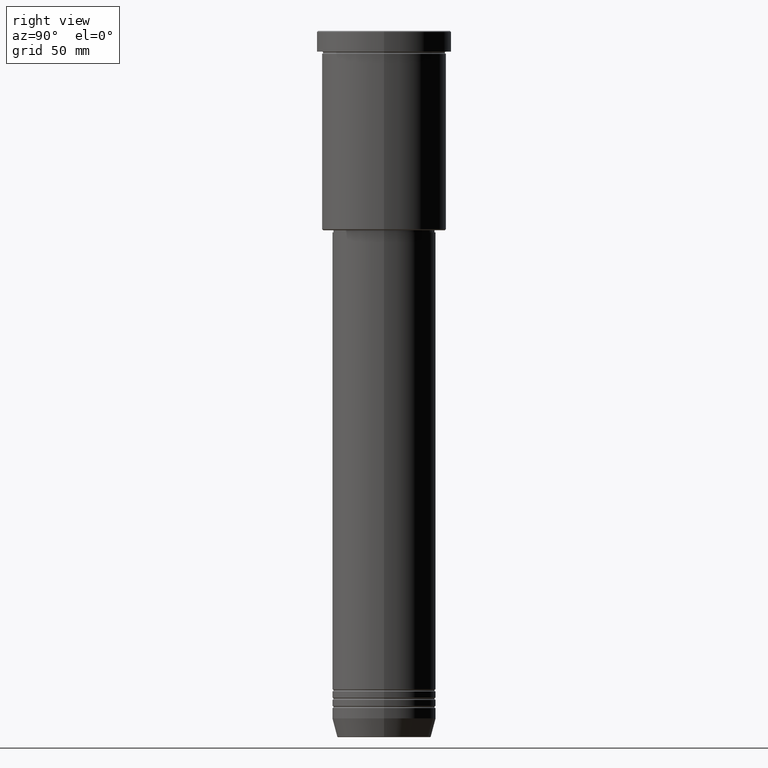
[diagram: clean part render]
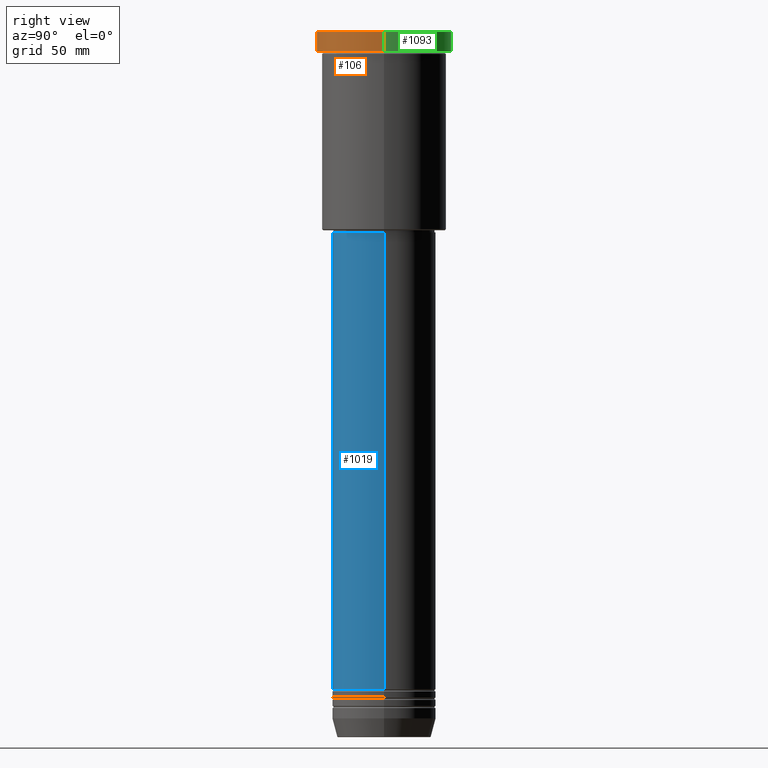
[diagram: same view with three faces highlighted in distinct colors, each labeled with its STEP entity id]
A machine part, right view with three faces highlighted in distinct colors.
Their STEP definitions:

[orange] entity #106 — the highlighted cylindrical surface (partial cylindrical patch) has radius 32.5 mm, axis along (-0, -0, 1).
#48 = FACE_OUTER_BOUND ( 'NONE', #844, .T. ) ;
#80 = CARTESIAN_POINT ( 'NONE',  ( 32.50000000000000000, 0.000000000000000000, 0.000000000000000000 ) ) ;
#81 = VECTOR ( 'NONE', #752, 1000.000000000000000 ) ;
#92 = CARTESIAN_POINT ( 'NONE',  ( 0.000000000000000000, 0.000000000000000000, -0.5000000000000559552 ) ) ;
#106 = ADVANCED_FACE ( 'NONE', ( #48 ), #657, .T. ) ;
#188 = ORIENTED_EDGE ( 'NONE', *, *, #875, .T. ) ;
#195 = VERTEX_POINT ( 'NONE', #553 ) ;
#223 = EDGE_CURVE ( 'NONE', #195, #1025, #828, .T. ) ;
#367 = AXIS2_PLACEMENT_3D ( 'NONE', #566, #548, #915 ) ;
#381 = AXIS2_PLACEMENT_3D ( 'NONE', #850, #1041, #756 ) ;
#427 = ORIENTED_EDGE ( 'NONE', *, *, #223, .F. ) ;
#435 = VERTEX_POINT ( 'NONE', #1052 ) ;
#468 = VERTEX_POINT ( 'NONE', #1121 ) ;
#539 = DIRECTION ( 'NONE',  ( -0.000000000000000000, -0.000000000000000000, 1.000000000000000000 ) ) ;
#548 = DIRECTION ( 'NONE',  ( -0.000000000000000000, -0.000000000000000000, 1.000000000000000000 ) ) ;
#553 = CARTESIAN_POINT ( 'NONE',  ( -32.50000000000000000, 3.980102097228898626E-15, -9.999999999999992895 ) ) ;
#566 = CARTESIAN_POINT ( 'NONE',  ( 0.000000000000000000, 0.000000000000000000, -9.999999999999992895 ) ) ;
#577 = VECTOR ( 'NONE', #539, 1000.000000000000000 ) ;
#598 = CARTESIAN_POINT ( 'NONE',  ( -32.50000000000000000, 3.980102097228898626E-15, -0.5000000000000559552 ) ) ;
#657 = CYLINDRICAL_SURFACE ( 'NONE', #381, 32.50000000000000000 ) ;
#683 = CIRCLE ( 'NONE', #367, 32.50000000000000000 ) ;
#686 = CIRCLE ( 'NONE', #885, 32.50000000000000000 ) ;
#728 = LINE ( 'NONE', #80, #577 ) ;
#752 = DIRECTION ( 'NONE',  ( -0.000000000000000000, -0.000000000000000000, 1.000000000000000000 ) ) ;
#756 = DIRECTION ( 'NONE',  ( 1.000000000000000000, 0.000000000000000000, 0.000000000000000000 ) ) ;
#828 = LINE ( 'NONE', #1007, #81 ) ;
#844 = EDGE_LOOP ( 'NONE', ( #427, #188, #944, #857 ) ) ;
#850 = CARTESIAN_POINT ( 'NONE',  ( 0.000000000000000000, 0.000000000000000000, 0.000000000000000000 ) ) ;
#857 = ORIENTED_EDGE ( 'NONE', *, *, #1081, .T. ) ;
#875 = EDGE_CURVE ( 'NONE', #195, #435, #683, .T. ) ;
#885 = AXIS2_PLACEMENT_3D ( 'NONE', #92, #907, #1096 ) ;
#907 = DIRECTION ( 'NONE',  ( 0.000000000000000000, 0.000000000000000000, -1.000000000000000000 ) ) ;
#915 = DIRECTION ( 'NONE',  ( 1.000000000000000000, 0.000000000000000000, 0.000000000000000000 ) ) ;
#944 = ORIENTED_EDGE ( 'NONE', *, *, #1044, .T. ) ;
#1007 = CARTESIAN_POINT ( 'NONE',  ( -32.50000000000000000, 3.980102097228898626E-15, 0.000000000000000000 ) ) ;
#1025 = VERTEX_POINT ( 'NONE', #598 ) ;
#1041 = DIRECTION ( 'NONE',  ( -0.000000000000000000, -0.000000000000000000, 1.000000000000000000 ) ) ;
#1044 = EDGE_CURVE ( 'NONE', #435, #468, #728, .T. ) ;
#1052 = CARTESIAN_POINT ( 'NONE',  ( 32.50000000000000000, 0.000000000000000000, -9.999999999999992895 ) ) ;
#1081 = EDGE_CURVE ( 'NONE', #468, #1025, #686, .T. ) ;
#1096 = DIRECTION ( 'NONE',  ( 1.000000000000000000, 0.000000000000000000, 0.000000000000000000 ) ) ;
#1121 = CARTESIAN_POINT ( 'NONE',  ( 32.50000000000000000, 0.000000000000000000, -0.5000000000000559552 ) ) ;

[blue] entity #1019 — the highlighted cylindrical surface (partial cylindrical patch) has radius 25 mm, axis along (-0, -0, 1).
#16 = EDGE_CURVE ( 'NONE', #1156, #146, #777, .T. ) ;
#84 = VECTOR ( 'NONE', #1097, 1000.000000000000000 ) ;
#110 = ORIENTED_EDGE ( 'NONE', *, *, #16, .T. ) ;
#146 = VERTEX_POINT ( 'NONE', #473 ) ;
#177 = DIRECTION ( 'NONE',  ( -0.000000000000000000, -0.000000000000000000, 1.000000000000000000 ) ) ;
#232 = FACE_OUTER_BOUND ( 'NONE', #1119, .T. ) ;
#239 = DIRECTION ( 'NONE',  ( 1.000000000000000000, 0.000000000000000000, 0.000000000000000000 ) ) ;
#241 = VERTEX_POINT ( 'NONE', #559 ) ;
#330 = LINE ( 'NONE', #970, #84 ) ;
#358 = DIRECTION ( 'NONE',  ( 1.000000000000000000, 0.000000000000000000, 0.000000000000000000 ) ) ;
#366 = DIRECTION ( 'NONE',  ( 1.000000000000000000, 0.000000000000000000, 0.000000000000000000 ) ) ;
#445 = CARTESIAN_POINT ( 'NONE',  ( 0.000000000000000000, 0.000000000000000000, -96.99999999999994316 ) ) ;
#473 = CARTESIAN_POINT ( 'NONE',  ( 25.00000000000000000, 0.000000000000000000, -317.0000000000000568 ) ) ;
#508 = DIRECTION ( 'NONE',  ( -0.000000000000000000, -0.000000000000000000, 1.000000000000000000 ) ) ;
#552 = CIRCLE ( 'NONE', #765, 25.00000000000000711 ) ;
#555 = VERTEX_POINT ( 'NONE', #889 ) ;
#559 = CARTESIAN_POINT ( 'NONE',  ( -25.00000000000001066, 3.061616997868384226E-15, -96.99999999999994316 ) ) ;
#593 = VECTOR ( 'NONE', #177, 1000.000000000000000 ) ;
#597 = ORIENTED_EDGE ( 'NONE', *, *, #640, .T. ) ;
#626 = CARTESIAN_POINT ( 'NONE',  ( -25.00000000000000355, 3.061616997868383437E-15, 0.000000000000000000 ) ) ;
#640 = EDGE_CURVE ( 'NONE', #146, #555, #330, .T. ) ;
#707 = CARTESIAN_POINT ( 'NONE',  ( 0.000000000000000000, 0.000000000000000000, -317.0000000000000568 ) ) ;
#713 = EDGE_CURVE ( 'NONE', #241, #555, #552, .T. ) ;
#716 = ORIENTED_EDGE ( 'NONE', *, *, #713, .F. ) ;
#765 = AXIS2_PLACEMENT_3D ( 'NONE', #445, #1177, #358 ) ;
#770 = CYLINDRICAL_SURFACE ( 'NONE', #782, 25.00000000000000355 ) ;
#777 = CIRCLE ( 'NONE', #1128, 25.00000000000000000 ) ;
#782 = AXIS2_PLACEMENT_3D ( 'NONE', #963, #508, #239 ) ;
#812 = CARTESIAN_POINT ( 'NONE',  ( -25.00000000000000000, 3.061616997868383437E-15, -317.0000000000000568 ) ) ;
#889 = CARTESIAN_POINT ( 'NONE',  ( 25.00000000000000711, 0.000000000000000000, -96.99999999999994316 ) ) ;
#963 = CARTESIAN_POINT ( 'NONE',  ( 0.000000000000000000, 0.000000000000000000, 0.000000000000000000 ) ) ;
#970 = CARTESIAN_POINT ( 'NONE',  ( 25.00000000000000355, 0.000000000000000000, 0.000000000000000000 ) ) ;
#984 = ORIENTED_EDGE ( 'NONE', *, *, #1143, .F. ) ;
#989 = DIRECTION ( 'NONE',  ( -0.000000000000000000, -0.000000000000000000, 1.000000000000000000 ) ) ;
#1019 = ADVANCED_FACE ( 'NONE', ( #232 ), #770, .T. ) ;
#1085 = LINE ( 'NONE', #626, #593 ) ;
#1097 = DIRECTION ( 'NONE',  ( -0.000000000000000000, -0.000000000000000000, 1.000000000000000000 ) ) ;
#1119 = EDGE_LOOP ( 'NONE', ( #984, #110, #597, #716 ) ) ;
#1128 = AXIS2_PLACEMENT_3D ( 'NONE', #707, #989, #366 ) ;
#1143 = EDGE_CURVE ( 'NONE', #1156, #241, #1085, .T. ) ;
#1156 = VERTEX_POINT ( 'NONE', #812 ) ;
#1177 = DIRECTION ( 'NONE',  ( -0.000000000000000000, -0.000000000000000000, 1.000000000000000000 ) ) ;

[green] entity #1093 — the highlighted cylindrical surface (partial cylindrical patch) has radius 32.5 mm, axis along (-0, -0, 1).
#80 = CARTESIAN_POINT ( 'NONE',  ( 32.50000000000000000, 0.000000000000000000, 0.000000000000000000 ) ) ;
#81 = VECTOR ( 'NONE', #752, 1000.000000000000000 ) ;
#155 = DIRECTION ( 'NONE',  ( 0.000000000000000000, 0.000000000000000000, -1.000000000000000000 ) ) ;
#158 = ORIENTED_EDGE ( 'NONE', *, *, #223, .T. ) ;
#195 = VERTEX_POINT ( 'NONE', #553 ) ;
#223 = EDGE_CURVE ( 'NONE', #195, #1025, #828, .T. ) ;
#245 = DIRECTION ( 'NONE',  ( 1.000000000000000000, 0.000000000000000000, 0.000000000000000000 ) ) ;
#308 = EDGE_LOOP ( 'NONE', ( #1083, #158, #733, #650 ) ) ;
#435 = VERTEX_POINT ( 'NONE', #1052 ) ;
#440 = AXIS2_PLACEMENT_3D ( 'NONE', #785, #1139, #863 ) ;
#444 = DIRECTION ( 'NONE',  ( 1.000000000000000000, 0.000000000000000000, 0.000000000000000000 ) ) ;
#468 = VERTEX_POINT ( 'NONE', #1121 ) ;
#523 = EDGE_CURVE ( 'NONE', #1025, #468, #1167, .T. ) ;
#539 = DIRECTION ( 'NONE',  ( -0.000000000000000000, -0.000000000000000000, 1.000000000000000000 ) ) ;
#553 = CARTESIAN_POINT ( 'NONE',  ( -32.50000000000000000, 3.980102097228898626E-15, -9.999999999999992895 ) ) ;
#577 = VECTOR ( 'NONE', #539, 1000.000000000000000 ) ;
#598 = CARTESIAN_POINT ( 'NONE',  ( -32.50000000000000000, 3.980102097228898626E-15, -0.5000000000000559552 ) ) ;
#649 = AXIS2_PLACEMENT_3D ( 'NONE', #721, #802, #444 ) ;
#650 = ORIENTED_EDGE ( 'NONE', *, *, #1044, .F. ) ;
#702 = CIRCLE ( 'NONE', #440, 32.50000000000000000 ) ;
#721 = CARTESIAN_POINT ( 'NONE',  ( 0.000000000000000000, 0.000000000000000000, 0.000000000000000000 ) ) ;
#728 = LINE ( 'NONE', #80, #577 ) ;
#733 = ORIENTED_EDGE ( 'NONE', *, *, #523, .T. ) ;
#752 = DIRECTION ( 'NONE',  ( -0.000000000000000000, -0.000000000000000000, 1.000000000000000000 ) ) ;
#785 = CARTESIAN_POINT ( 'NONE',  ( 0.000000000000000000, 0.000000000000000000, -9.999999999999992895 ) ) ;
#802 = DIRECTION ( 'NONE',  ( -0.000000000000000000, -0.000000000000000000, 1.000000000000000000 ) ) ;
#828 = LINE ( 'NONE', #1007, #81 ) ;
#863 = DIRECTION ( 'NONE',  ( 1.000000000000000000, 0.000000000000000000, 0.000000000000000000 ) ) ;
#912 = CYLINDRICAL_SURFACE ( 'NONE', #649, 32.50000000000000000 ) ;
#932 = EDGE_CURVE ( 'NONE', #435, #195, #702, .T. ) ;
#957 = AXIS2_PLACEMENT_3D ( 'NONE', #976, #155, #245 ) ;
#976 = CARTESIAN_POINT ( 'NONE',  ( 0.000000000000000000, 0.000000000000000000, -0.5000000000000559552 ) ) ;
#987 = FACE_OUTER_BOUND ( 'NONE', #308, .T. ) ;
#1007 = CARTESIAN_POINT ( 'NONE',  ( -32.50000000000000000, 3.980102097228898626E-15, 0.000000000000000000 ) ) ;
#1025 = VERTEX_POINT ( 'NONE', #598 ) ;
#1044 = EDGE_CURVE ( 'NONE', #435, #468, #728, .T. ) ;
#1052 = CARTESIAN_POINT ( 'NONE',  ( 32.50000000000000000, 0.000000000000000000, -9.999999999999992895 ) ) ;
#1083 = ORIENTED_EDGE ( 'NONE', *, *, #932, .T. ) ;
#1093 = ADVANCED_FACE ( 'NONE', ( #987 ), #912, .T. ) ;
#1121 = CARTESIAN_POINT ( 'NONE',  ( 32.50000000000000000, 0.000000000000000000, -0.5000000000000559552 ) ) ;
#1139 = DIRECTION ( 'NONE',  ( -0.000000000000000000, -0.000000000000000000, 1.000000000000000000 ) ) ;
#1167 = CIRCLE ( 'NONE', #957, 32.50000000000000000 ) ;